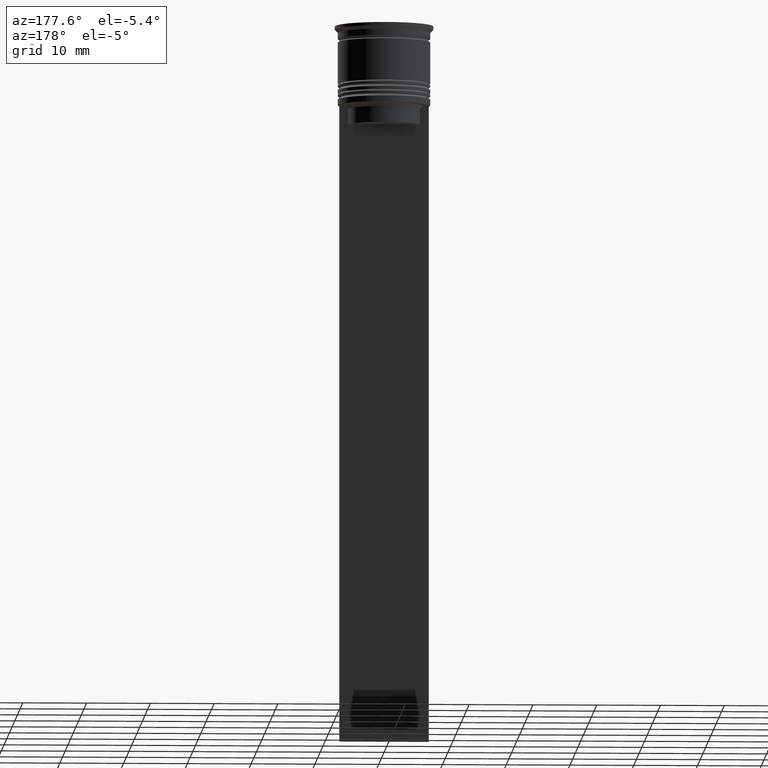
[diagram: clean part render]
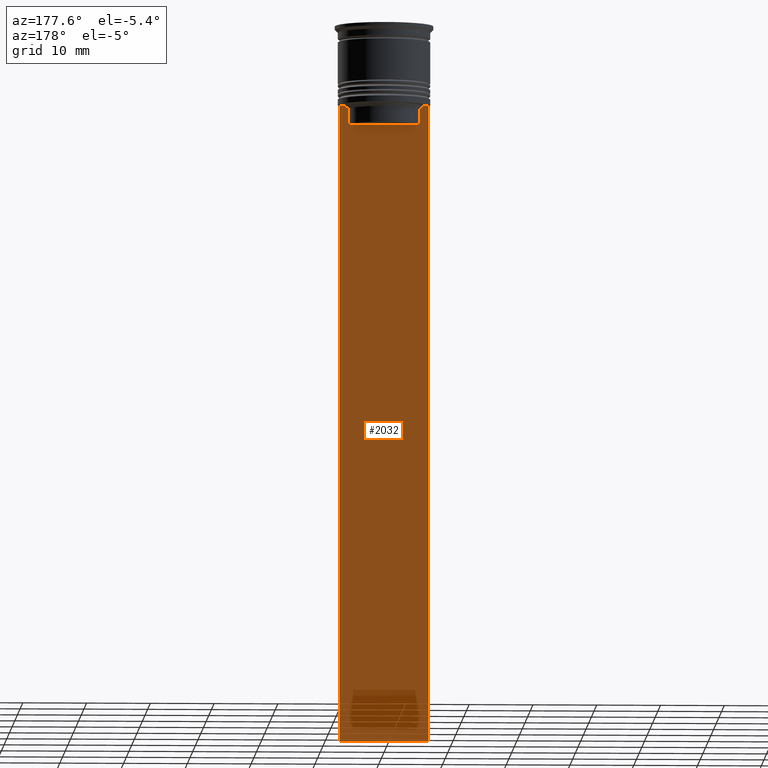
[diagram: same view with one face highlighted and labeled with its STEP entity id]
A machine part, auxiliary view. The second image highlights one B-rep face of the part: STEP entity #2032.
In plain terms, the highlighted planar face has unit normal (0, -1, -0).
Its self-contained STEP definition (entity closure, byte-faithful):
#55 = CARTESIAN_POINT ( 'NONE',  ( 6.129641098791995368, 0.4999999999999978351, -12.50000000000000000 ) ) ;
#59 = VERTEX_POINT ( 'NONE', #1250 ) ;
#65 = CARTESIAN_POINT ( 'NONE',  ( 5.795128760752291441, 0.4999999999999978351, -12.83336023406855020 ) ) ;
#73 = VECTOR ( 'NONE', #1249, 1000.000000000000000 ) ;
#92 = ORIENTED_EDGE ( 'NONE', *, *, #671, .T. ) ;
#111 = VERTEX_POINT ( 'NONE', #1958 ) ;
#128 = LINE ( 'NONE', #1568, #1200 ) ;
#130 = B_SPLINE_CURVE_WITH_KNOTS ( 'NONE', 3,
 ( #694, #2323, #2308, #1603 ),
 .UNSPECIFIED., .F., .F.,
 ( 4, 4 ),
 ( 0.01045365750109871796, 0.01116204421161398619 ),
 .UNSPECIFIED. ) ;
#150 = VECTOR ( 'NONE', #1820, 1000.000000000000000 ) ;
#175 = LINE ( 'NONE', #1613, #987 ) ;
#196 = DIRECTION ( 'NONE',  ( 0.000000000000000000, 0.000000000000000000, -1.000000000000000000 ) ) ;
#207 = LINE ( 'NONE', #1075, #1259 ) ;
#221 = EDGE_LOOP ( 'NONE', ( #314, #92, #659, #450, #1041, #753, #1356, #614, #1181, #1588 ) ) ;
#263 = B_SPLINE_CURVE_WITH_KNOTS ( 'NONE', 3,
 ( #2228, #65, #1672, #55 ),
 .UNSPECIFIED., .F., .F.,
 ( 4, 4 ),
 ( 0.02651134470867373347, 0.02721991123504337307 ),
 .UNSPECIFIED. ) ;
#270 = FACE_OUTER_BOUND ( 'NONE', #221, .T. ) ;
#274 = VERTEX_POINT ( 'NONE', #1383 ) ;
#314 = ORIENTED_EDGE ( 'NONE', *, *, #1624, .T. ) ;
#439 = EDGE_CURVE ( 'NONE', #274, #1179, #2344, .T. ) ;
#450 = ORIENTED_EDGE ( 'NONE', *, *, #1665, .T. ) ;
#451 = EDGE_CURVE ( 'NONE', #2018, #274, #933, .T. ) ;
#464 = CARTESIAN_POINT ( 'NONE',  ( 7.000000000000012434, 0.4999999999999978351, 1.535668847618198329 ) ) ;
#526 = CARTESIAN_POINT ( 'NONE',  ( -5.627832620112292794, 0.4999999999999978351, -15.50000000000000000 ) ) ;
#614 = ORIENTED_EDGE ( 'NONE', *, *, #451, .T. ) ;
#633 = DIRECTION ( 'NONE',  ( 0.000000000000000000, 0.000000000000000000, -1.000000000000000000 ) ) ;
#646 = CARTESIAN_POINT ( 'NONE',  ( 5.627832620112292794, 0.4999999999999978351, -15.50000000000000000 ) ) ;
#659 = ORIENTED_EDGE ( 'NONE', *, *, #2280, .T. ) ;
#671 = EDGE_CURVE ( 'NONE', #822, #985, #130, .T. ) ;
#694 = CARTESIAN_POINT ( 'NONE',  ( -6.129641098791995368, 0.4999999999999978351, -12.50000000000000000 ) ) ;
#731 = DIRECTION ( 'NONE',  ( -0.000000000000000000, -0.000000000000000000, 1.000000000000000000 ) ) ;
#732 = LINE ( 'NONE', #869, #73 ) ;
#753 = ORIENTED_EDGE ( 'NONE', *, *, #1889, .T. ) ;
#772 = EDGE_CURVE ( 'NONE', #111, #1179, #2195, .T. ) ;
#822 = VERTEX_POINT ( 'NONE', #2020 ) ;
#841 = DIRECTION ( 'NONE',  ( 1.000000000000000000, 0.000000000000000000, 0.000000000000000000 ) ) ;
#869 = CARTESIAN_POINT ( 'NONE',  ( 0.000000000000000000, 0.4999999999999978351, -15.50000000000000000 ) ) ;
#881 = EDGE_CURVE ( 'NONE', #955, #2018, #913, .T. ) ;
#913 = LINE ( 'NONE', #945, #1570 ) ;
#933 = LINE ( 'NONE', #1087, #1475 ) ;
#945 = CARTESIAN_POINT ( 'NONE',  ( 7.000000000000012434, 0.4999999999999978351, -12.50000000000000000 ) ) ;
#955 = VERTEX_POINT ( 'NONE', #1690 ) ;
#985 = VERTEX_POINT ( 'NONE', #1156 ) ;
#987 = VECTOR ( 'NONE', #731, 1000.000000000000000 ) ;
#1041 = ORIENTED_EDGE ( 'NONE', *, *, #2189, .T. ) ;
#1075 = CARTESIAN_POINT ( 'NONE',  ( -5.627832620112292794, 0.4999999999999978351, 0.000000000000000000 ) ) ;
#1087 = CARTESIAN_POINT ( 'NONE',  ( 7.000000000000012434, 0.4999999999999978351, 1.535668847618198329 ) ) ;
#1156 = CARTESIAN_POINT ( 'NONE',  ( -5.627832620112292794, 0.4999999999999978351, -13.00000000000000000 ) ) ;
#1179 = VERTEX_POINT ( 'NONE', #1787 ) ;
#1181 = ORIENTED_EDGE ( 'NONE', *, *, #439, .T. ) ;
#1200 = VECTOR ( 'NONE', #841, 1000.000000000000000 ) ;
#1249 = DIRECTION ( 'NONE',  ( 1.000000000000000000, 0.000000000000000000, 0.000000000000000000 ) ) ;
#1250 = CARTESIAN_POINT ( 'NONE',  ( 5.627832620112292794, 0.4999999999999978351, -13.00000000000000000 ) ) ;
#1259 = VECTOR ( 'NONE', #1287, 1000.000000000000000 ) ;
#1283 = CARTESIAN_POINT ( 'NONE',  ( -6.999999999999987566, 0.4999999999999978351, 1.535668847618198329 ) ) ;
#1287 = DIRECTION ( 'NONE',  ( 0.000000000000000000, 0.000000000000000000, -1.000000000000000000 ) ) ;
#1356 = ORIENTED_EDGE ( 'NONE', *, *, #881, .T. ) ;
#1376 = PLANE ( 'NONE',  #2310 ) ;
#1383 = CARTESIAN_POINT ( 'NONE',  ( 7.000000000000012434, 0.4999999999999978351, -112.5000000000000000 ) ) ;
#1444 = CARTESIAN_POINT ( 'NONE',  ( 7.000000000000012434, 0.4999999999999978351, -112.5000000000000000 ) ) ;
#1475 = VECTOR ( 'NONE', #196, 1000.000000000000000 ) ;
#1494 = DIRECTION ( 'NONE',  ( 0.000000000000000000, 0.000000000000000000, -1.000000000000000000 ) ) ;
#1524 = VERTEX_POINT ( 'NONE', #646 ) ;
#1568 = CARTESIAN_POINT ( 'NONE',  ( 7.000000000000012434, 0.4999999999999978351, -12.50000000000000000 ) ) ;
#1570 = VECTOR ( 'NONE', #1669, 1000.000000000000000 ) ;
#1588 = ORIENTED_EDGE ( 'NONE', *, *, #772, .F. ) ;
#1603 = CARTESIAN_POINT ( 'NONE',  ( -5.627832620112292794, 0.4999999999999978351, -13.00000000000000000 ) ) ;
#1613 = CARTESIAN_POINT ( 'NONE',  ( 5.627832620112292794, 0.4999999999999978351, 0.000000000000000000 ) ) ;
#1624 = EDGE_CURVE ( 'NONE', #111, #822, #128, .T. ) ;
#1665 = EDGE_CURVE ( 'NONE', #2212, #1524, #732, .T. ) ;
#1669 = DIRECTION ( 'NONE',  ( 1.000000000000000000, 0.000000000000000000, 0.000000000000000000 ) ) ;
#1672 = CARTESIAN_POINT ( 'NONE',  ( 5.962396079681187011, 0.4999999999999978351, -12.66669137279835411 ) ) ;
#1690 = CARTESIAN_POINT ( 'NONE',  ( 6.129641098791995368, 0.4999999999999978351, -12.50000000000000000 ) ) ;
#1738 = CARTESIAN_POINT ( 'NONE',  ( 7.000000000000012434, 0.4999999999999978351, -12.50000000000000000 ) ) ;
#1787 = CARTESIAN_POINT ( 'NONE',  ( -6.999999999999987566, 0.4999999999999978351, -112.5000000000000000 ) ) ;
#1820 = DIRECTION ( 'NONE',  ( -1.000000000000000000, 0.000000000000000000, 0.000000000000000000 ) ) ;
#1889 = EDGE_CURVE ( 'NONE', #59, #955, #263, .T. ) ;
#1958 = CARTESIAN_POINT ( 'NONE',  ( -6.999999999999987566, 0.4999999999999980571, -12.50000000000000000 ) ) ;
#2018 = VERTEX_POINT ( 'NONE', #1738 ) ;
#2020 = CARTESIAN_POINT ( 'NONE',  ( -6.129641098791995368, 0.4999999999999978351, -12.50000000000000000 ) ) ;
#2032 = ADVANCED_FACE ( 'NONE', ( #270 ), #1376, .F. ) ;
#2174 = VECTOR ( 'NONE', #1494, 1000.000000000000000 ) ;
#2189 = EDGE_CURVE ( 'NONE', #1524, #59, #175, .T. ) ;
#2195 = LINE ( 'NONE', #1283, #2174 ) ;
#2212 = VERTEX_POINT ( 'NONE', #526 ) ;
#2228 = CARTESIAN_POINT ( 'NONE',  ( 5.627832620112292794, 0.4999999999999978351, -13.00000000000000000 ) ) ;
#2263 = DIRECTION ( 'NONE',  ( 0.000000000000000000, -1.000000000000000000, -0.000000000000000000 ) ) ;
#2280 = EDGE_CURVE ( 'NONE', #985, #2212, #207, .T. ) ;
#2308 = CARTESIAN_POINT ( 'NONE',  ( -5.795128834036803234, 0.4999999999999978351, -12.83336016107156574 ) ) ;
#2310 = AXIS2_PLACEMENT_3D ( 'NONE', #464, #2263, #633 ) ;
#2323 = CARTESIAN_POINT ( 'NONE',  ( -5.962396146966409738, 0.4999999999999978351, -12.66669130573587054 ) ) ;
#2344 = LINE ( 'NONE', #1444, #150 ) ;